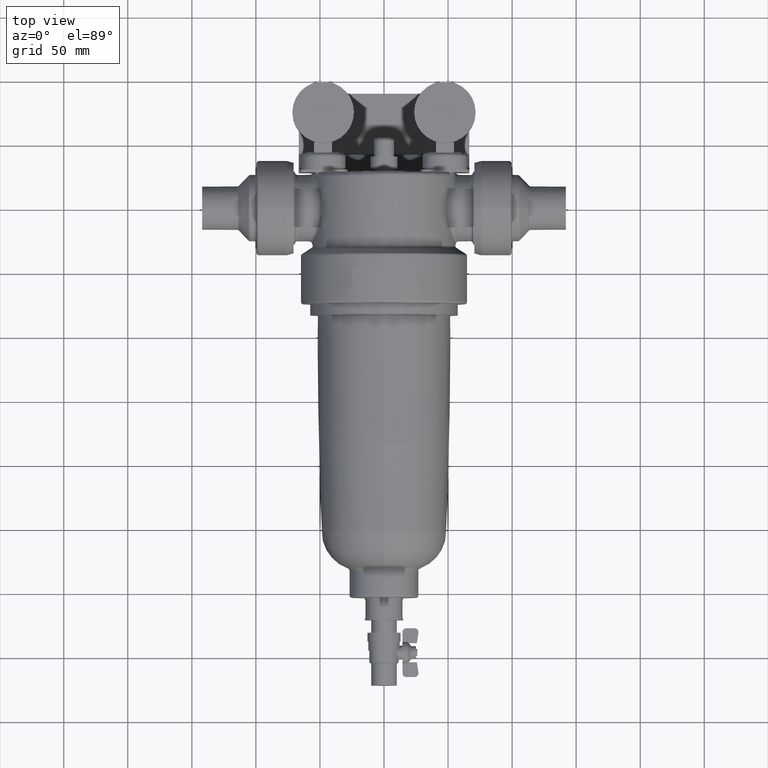
[diagram: clean part render]
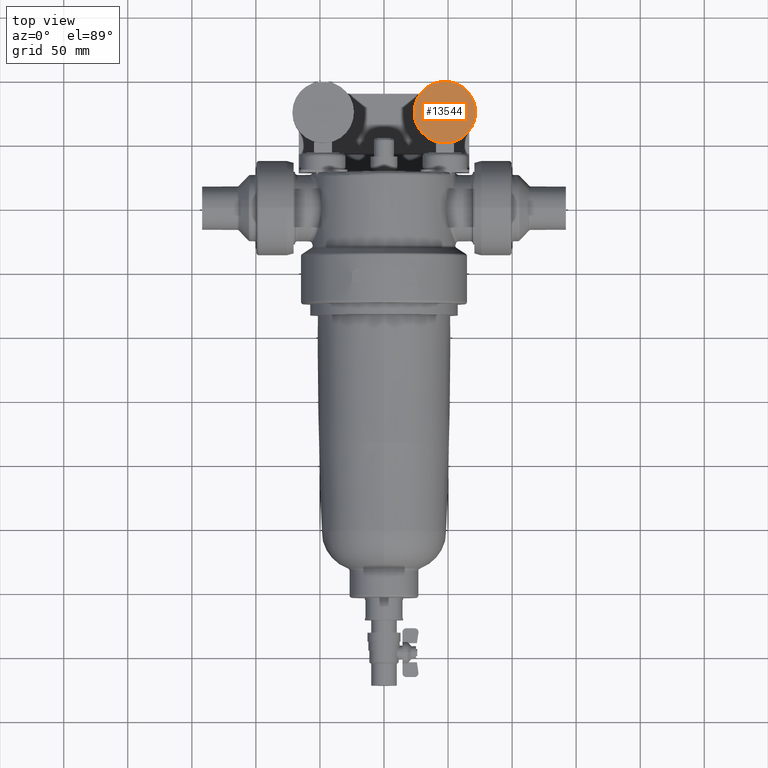
[diagram: same view with one face highlighted and labeled with its STEP entity id]
A machine part, top view. The second image highlights one B-rep face of the part: STEP entity #13544.
In plain terms, the highlighted planar face has unit normal (0, 0, 1).
Its self-contained STEP definition (entity closure, byte-faithful):
#19 = EDGE_CURVE ( 'NONE', #10385, #2386, #217, .T. ) ;
#217 = CIRCLE ( 'NONE', #307, 24.00000000000000355 ) ;
#307 = AXIS2_PLACEMENT_3D ( 'NONE', #3174, #11036, #9909 ) ;
#576 = EDGE_LOOP ( 'NONE', ( #2328, #1155 ) ) ;
#1155 = ORIENTED_EDGE ( 'NONE', *, *, #5491, .F. ) ;
#1440 = CARTESIAN_POINT ( 'NONE',  ( 47.50000000000002132, 74.75000000000000000, 13.62500000000000000 ) ) ;
#2328 = ORIENTED_EDGE ( 'NONE', *, *, #19, .F. ) ;
#2386 = VERTEX_POINT ( 'NONE', #8896 ) ;
#2569 = DIRECTION ( 'NONE',  ( -1.000000000000000000, 0.0000000000000000000, 0.0000000000000000000 ) ) ;
#3160 = AXIS2_PLACEMENT_3D ( 'NONE', #10609, #3888, #11757 ) ;
#3174 = CARTESIAN_POINT ( 'NONE',  ( 47.50000000000002132, 74.75000000000000000, 13.62500000000000000 ) ) ;
#3888 = DIRECTION ( 'NONE',  ( -0.0000000000000000000, -0.0000000000000000000, -1.000000000000000000 ) ) ;
#4063 = FACE_OUTER_BOUND ( 'NONE', #576, .T. ) ;
#4463 = CARTESIAN_POINT ( 'NONE',  ( 23.50000000000001776, 74.75000000000000000, 13.62500000000000000 ) ) ;
#5491 = EDGE_CURVE ( 'NONE', #2386, #10385, #13892, .T. ) ;
#8896 = CARTESIAN_POINT ( 'NONE',  ( 71.50000000000004263, 74.75000000000000000, 13.62500000000000000 ) ) ;
#9297 = DIRECTION ( 'NONE',  ( 0.0000000000000000000, 0.0000000000000000000, 1.000000000000000000 ) ) ;
#9909 = DIRECTION ( 'NONE',  ( -1.000000000000000000, 0.0000000000000000000, 0.0000000000000000000 ) ) ;
#10384 = PLANE ( 'NONE',  #10460 ) ;
#10385 = VERTEX_POINT ( 'NONE', #4463 ) ;
#10460 = AXIS2_PLACEMENT_3D ( 'NONE', #1440, #9297, #2569 ) ;
#10609 = CARTESIAN_POINT ( 'NONE',  ( 47.50000000000002132, 74.75000000000000000, 13.62500000000000000 ) ) ;
#11036 = DIRECTION ( 'NONE',  ( -0.0000000000000000000, -0.0000000000000000000, -1.000000000000000000 ) ) ;
#11757 = DIRECTION ( 'NONE',  ( -1.000000000000000000, 0.0000000000000000000, 0.0000000000000000000 ) ) ;
#13544 = ADVANCED_FACE ( 'NONE', ( #4063 ), #10384, .T. ) ;
#13892 = CIRCLE ( 'NONE', #3160, 24.00000000000000355 ) ;